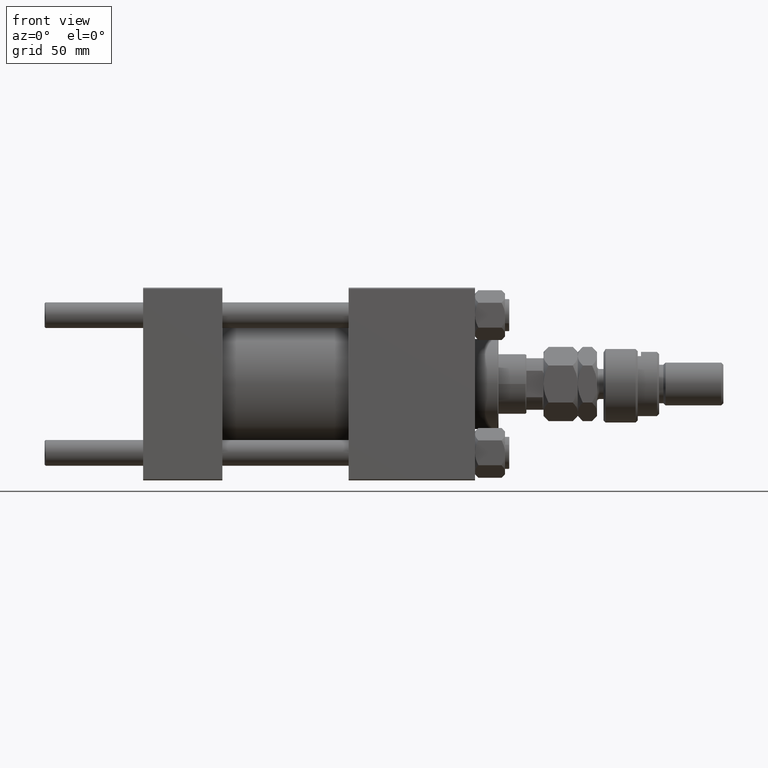
[diagram: clean part render]
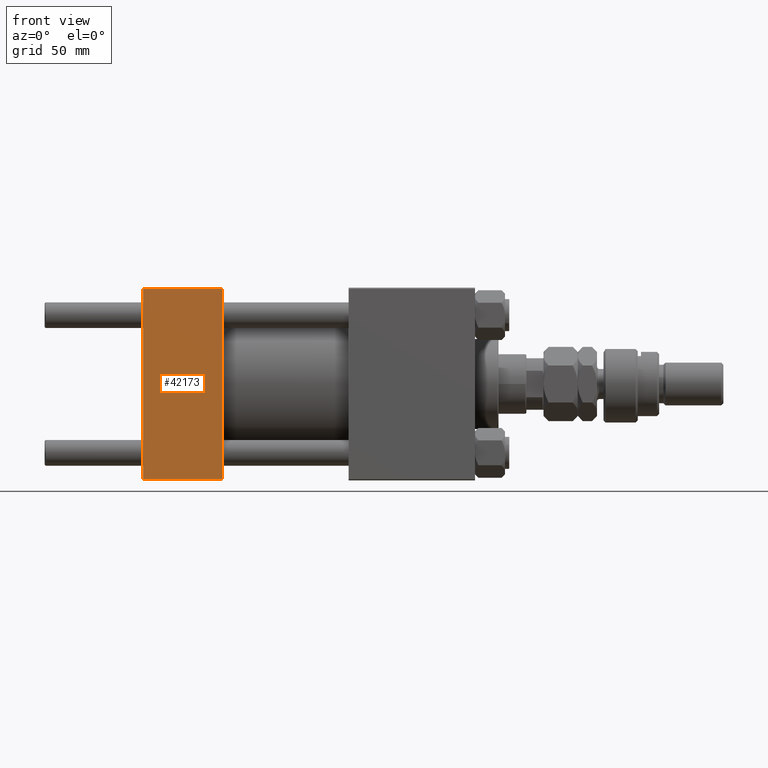
[diagram: same view with one face highlighted and labeled with its STEP entity id]
A machine part, front view. The second image highlights one B-rep face of the part: STEP entity #42173.
In plain terms, the highlighted planar face has unit normal (0, 1, 0).
Its self-contained STEP definition (entity closure, byte-faithful):
#987 = EDGE_CURVE ( 'NONE', #47231, #26794, #3127, .T. ) ;
#1600 = EDGE_LOOP ( 'NONE', ( #43376, #21909, #25835, #51739 ) ) ;
#1699 = DIRECTION ( 'NONE',  ( 0.000000000000000000, -7.709882115452478166E-17, 1.000000000000000000 ) ) ;
#2284 = CARTESIAN_POINT ( 'NONE',  ( 0.000000000000000000, -45.00000000000000711, 44.49999999999997158 ) ) ;
#3127 = LINE ( 'NONE', #20107, #13517 ) ;
#4546 = LINE ( 'NONE', #29271, #37667 ) ;
#9671 = PLANE ( 'NONE',  #24774 ) ;
#10262 = CARTESIAN_POINT ( 'NONE',  ( 37.00000000000000000, -45.00000000000000711, 44.49999999999997158 ) ) ;
#11595 = VECTOR ( 'NONE', #27546, 1000.000000000000000 ) ;
#11995 = CARTESIAN_POINT ( 'NONE',  ( 37.00000000000000000, -45.00000000000000711, 44.49999999999997158 ) ) ;
#13517 = VECTOR ( 'NONE', #32341, 1000.000000000000000 ) ;
#17131 = CARTESIAN_POINT ( 'NONE',  ( 37.00000000000000000, -45.00000000000000711, 45.00000000000000000 ) ) ;
#17923 = EDGE_CURVE ( 'NONE', #45869, #47231, #46738, .T. ) ;
#20107 = CARTESIAN_POINT ( 'NONE',  ( 0.000000000000000000, -45.00000000000000711, 45.00000000000000000 ) ) ;
#21657 = EDGE_CURVE ( 'NONE', #26794, #32282, #30724, .T. ) ;
#21909 = ORIENTED_EDGE ( 'NONE', *, *, #21657, .T. ) ;
#24774 = AXIS2_PLACEMENT_3D ( 'NONE', #17131, #38136, #1699 ) ;
#25835 = ORIENTED_EDGE ( 'NONE', *, *, #46010, .F. ) ;
#26794 = VERTEX_POINT ( 'NONE', #43678 ) ;
#27546 = DIRECTION ( 'NONE',  ( 1.000000000000000000, 0.000000000000000000, 0.000000000000000000 ) ) ;
#29271 = CARTESIAN_POINT ( 'NONE',  ( 37.00000000000000000, -45.00000000000000711, 45.00000000000000000 ) ) ;
#30352 = CARTESIAN_POINT ( 'NONE',  ( 37.00000000000000000, -45.00000000000000000, -44.49999999999995737 ) ) ;
#30724 = LINE ( 'NONE', #31800, #11595 ) ;
#31800 = CARTESIAN_POINT ( 'NONE',  ( 37.00000000000000000, -45.00000000000000000, -44.49999999999998579 ) ) ;
#32282 = VERTEX_POINT ( 'NONE', #30352 ) ;
#32341 = DIRECTION ( 'NONE',  ( 0.000000000000000000, 7.709882115452476934E-17, -1.000000000000000000 ) ) ;
#34136 = FACE_OUTER_BOUND ( 'NONE', #1600, .T. ) ;
#37667 = VECTOR ( 'NONE', #42050, 1000.000000000000000 ) ;
#38136 = DIRECTION ( 'NONE',  ( -0.000000000000000000, 1.000000000000000000, 7.709882115452478166E-17 ) ) ;
#39528 = VECTOR ( 'NONE', #47012, 1000.000000000000000 ) ;
#42050 = DIRECTION ( 'NONE',  ( 0.000000000000000000, 7.709882115452476934E-17, -1.000000000000000000 ) ) ;
#42173 = ADVANCED_FACE ( 'NONE', ( #34136 ), #9671, .F. ) ;
#43376 = ORIENTED_EDGE ( 'NONE', *, *, #987, .T. ) ;
#43678 = CARTESIAN_POINT ( 'NONE',  ( 0.000000000000000000, -45.00000000000000000, -44.49999999999995737 ) ) ;
#45869 = VERTEX_POINT ( 'NONE', #11995 ) ;
#46010 = EDGE_CURVE ( 'NONE', #45869, #32282, #4546, .T. ) ;
#46738 = LINE ( 'NONE', #10262, #39528 ) ;
#47012 = DIRECTION ( 'NONE',  ( -1.000000000000000000, 0.000000000000000000, 0.000000000000000000 ) ) ;
#47231 = VERTEX_POINT ( 'NONE', #2284 ) ;
#51739 = ORIENTED_EDGE ( 'NONE', *, *, #17923, .T. ) ;